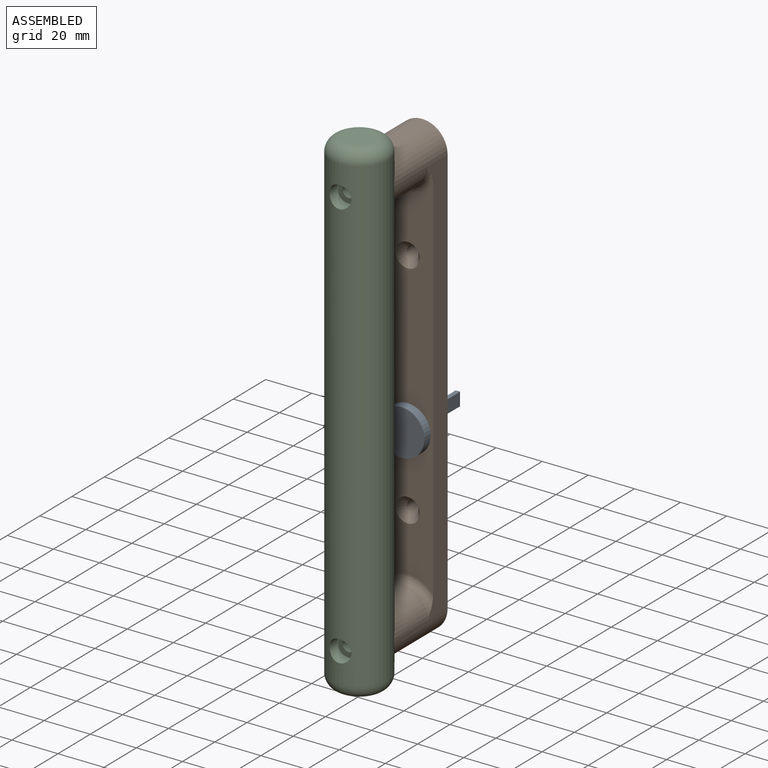
[diagram: assembled view]
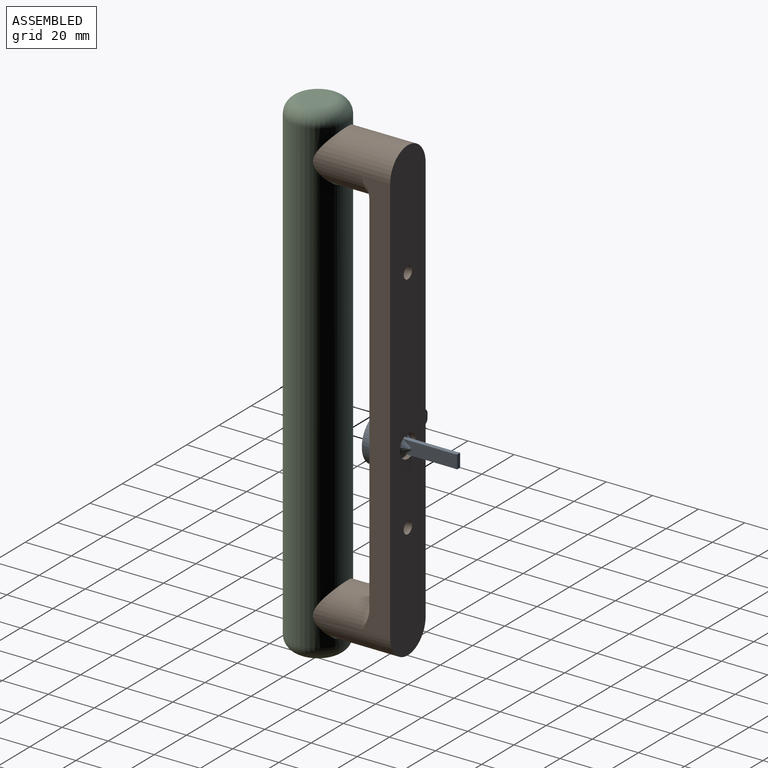
[diagram: assembled view, second angle]
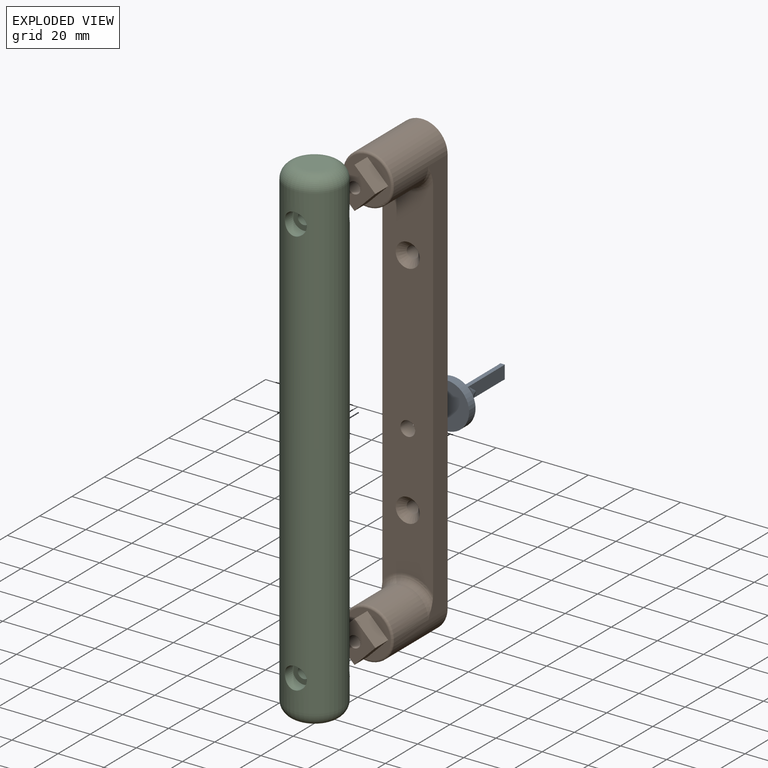
[diagram: exploded view]
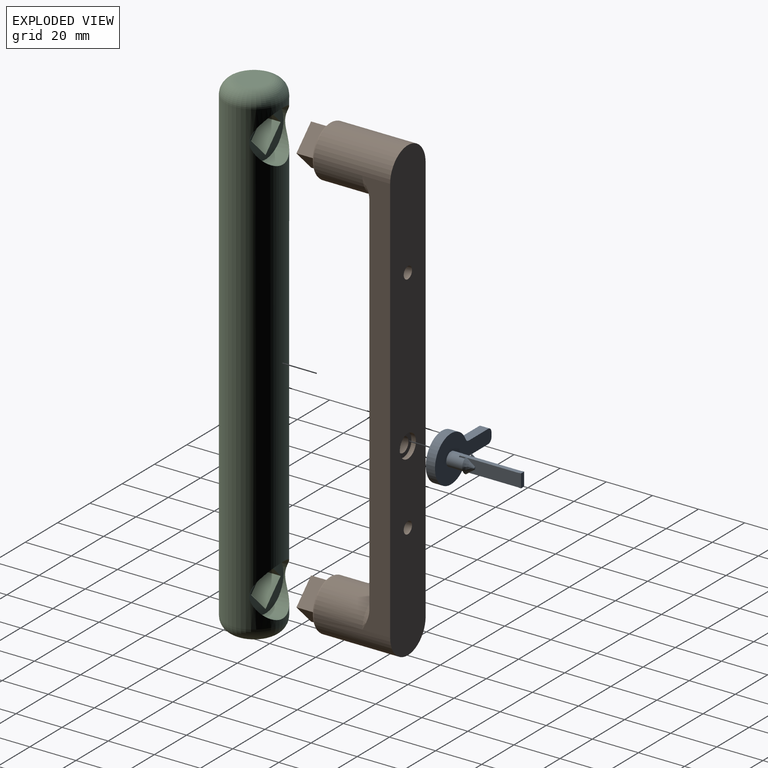
[diagram: exploded view, second angle]
ASSEMBLY  parts=3 mates=2
PART A: 31 faces, bbox 35x20x35 mm
  f0: cylinder r=10mm len=20mm, axis (0,0,-1), area 216.9mm2, adj f1,f3,f27,f28
  f1: plane 35x20mm, normal (0,0,1), area 375.9mm2, adj f0,f4,f5,f8,f11,f22,f23,f24
  f2: plane 26.5x5.85mm, normal (-1,0,0), area 151mm2, adj f4,f5,f7,f8,f12,f13,f25
  f3: plane 35x20mm, normal (0,0,-1), area 404mm2, adj f0,f22,f23,f24,f27,f28,f29,f30
  f4: plane 31x1.9mm, normal (0,1,0), area 41.9mm2, adj f1,f2,f6,f7,f8,f10,f11,f13
  f5: plane 31x1.9mm, normal (0,-1,0), area 41.9mm2, adj f1,f2,f6,f7,f8,f9,f11,f12
  f6: plane 26.5x5.85mm, normal (1,0,0), area 151mm2, adj f4,f5,f7,f9,f10,f11,f26
  f7: plane 5.85x1.9mm, normal (0,0,1), area 11.1mm2, adj f2,f4,f5,f6
  f8: cylinder r=3mm len=30mm, axis (0,0,-1), area 69.9mm2, adj f1,f2,f4,f5,f12,f13,f14,f16
  f9: plane 0.28x0.08mm, normal (0,0,-1), area 0mm2, adj f5,f6,f11
  f10: plane 0.28x0.08mm, normal (0,0,-1), area 0mm2, adj f4,f6,f11
  f11: cylinder r=3mm len=30mm, axis (0,0,-1), area 69.9mm2, adj f1,f4,f5,f6,f9,f10,f18,f20
  f12: plane 0.28x0.08mm, normal (0,0,-1), area 0mm2, adj f2,f5,f8
  f13: plane 0.28x0.08mm, normal (0,0,-1), area 0mm2, adj f2,f4,f8
  f14: plane 6.94x2.25mm, normal (0,0,-1), area 6mm2, adj f8,f16,f17
  f15: plane 1x0.5mm, normal (0,0,1), area 0.4mm2, adj f16,f17
  f16: plane 7x6.94mm, normal (1,0,0), area 31.3mm2, adj f8,f14,f15,f17,f25
  f17: bspline ~6.94x4mm, area 23.3mm2, adj f14,f15,f16
  f18: plane 6.94x2.25mm, normal (0,0,-1), area 6mm2, adj f11,f20,f21
  f19: plane 1x0.5mm, normal (0,0,1), area 0.4mm2, adj f20,f21
  f20: plane 7x6.94mm, normal (-1,0,0), area 31.3mm2, adj f11,f18,f19,f21,f26
  f21: bspline ~6.94x4mm, area 23.3mm2, adj f18,f19,f20
  f22: plane 12.09x4mm, normal (0,-1,0), area 48.4mm2, adj f1,f3,f27,f29
  f23: plane 12.09x4mm, normal (0,1,0), area 48.4mm2, adj f1,f3,f28,f30
  f24: plane 4x2mm, normal (-1,0,0), area 8mm2, adj f1,f3,f29,f30
  f25: plane 5.69x0.6mm, normal (0,0,1), area 3.3mm2, adj f2,f8,f16
  f26: plane 5.69x0.6mm, normal (0,0,1), area 3.3mm2, adj f6,f11,f20
  f27: cylinder r=2mm len=4mm, axis (0,0,-1), area 9.1mm2, adj f0,f1,f3,f22
  f28: cylinder r=2mm len=4mm, axis (0,0,-1), area 9.1mm2, adj f0,f1,f3,f23
  f29: cylinder r=2mm len=4mm, axis (0,0,1), area 12.6mm2, adj f1,f3,f22,f24
  f30: cylinder r=2mm len=4mm, axis (0,0,-1), area 12.6mm2, adj f1,f3,f23,f24
PART B: 51 faces, bbox 34.9x42x201.8 mm
  f0: plane 20x20mm, normal (0,-1,0), area 150.3mm2, adj f31,f32,f33,f34,f49
  f1: cylinder r=3.2mm len=7mm, axis (0,-1,0), area 140.7mm2, adj f4,f30
  f2: plane 178x12mm, normal (-1,0,0), area 1621.5mm2, adj f4,f5,f10,f11,f47,f48
  f3: plane 178x12mm, normal (1,0,0), area 1621.5mm2, adj f4,f5,f10,f11,f47,f48
  f4: plane 160.68x22mm, normal (0,-1,0), area 3167.8mm2, adj f1,f2,f3,f7,f9,f47,f48
  f5: plane 200x22mm, normal (0,1,0), area 4176.6mm2, adj f2,f3,f6,f8,f10,f11,f29
  f6: cylinder r=2.55mm len=5.93mm, axis (0,-1,0), area 95.1mm2, adj f5,f7
  f7: cone r=2.55mm half-angle=41deg, axis (0,-1,0), area 99.3mm2, adj f4,f6
  f8: cylinder r=2.55mm len=5.93mm, axis (0,-1,0), area 95.1mm2, adj f5,f9
  f9: cone r=2.55mm half-angle=41deg, axis (0,-1,0), area 99.3mm2, adj f4,f8
  f10: cylinder r=11mm len=33mm, axis (0,1,0), area 1866.1mm2, adj f2,f3,f5,f47,f49
  f11: cylinder r=11mm len=33mm, axis (0,-1,0), area 1866.1mm2, adj f2,f3,f5,f48,f50
  f12: plane 20x20mm, normal (0,-1,0), area 150.3mm2, adj f13,f14,f15,f16,f50
  f13: plane 9.05x9.05mm, normal (0.71,0,0.71), area 102.4mm2, adj f12,f14,f16,f17
  f14: plane 9.05x9.05mm, normal (-0.71,0,0.71), area 102.4mm2, adj f12,f13,f15,f17
  f15: plane 9.05x9.05mm, normal (-0.71,0,-0.71), area 102.4mm2, adj f12,f14,f16,f17
  f16: plane 9.05x9.05mm, normal (0.71,0,-0.71), area 102.4mm2, adj f12,f13,f15,f17
  f17: plane 18.1x18.1mm, normal (0,-1,0), area 143.4mm2, adj f13,f14,f15,f16,f18
  f18: cylinder r=2.55mm len=8mm, axis (0,-1,0), area 128.3mm2, adj f17,f26
  f19: plane 5.63x3.25mm, normal (0,0,-1), area 18.3mm2, adj f20,f24,f25,f26
  f20: plane 4.88x3.25mm, normal (0.87,0,-0.5), area 18.3mm2, adj f19,f21,f25,f26
  f21: plane 4.88x3.25mm, normal (0.87,0,0.5), area 18.3mm2, adj f20,f22,f25,f26
  f22: plane 5.63x3.25mm, normal (0,0,1), area 18.3mm2, adj f21,f23,f25,f26
  f23: plane 4.88x3.25mm, normal (-0.87,0,0.5), area 18.3mm2, adj f22,f24,f25,f26
  f24: plane 4.88x3.25mm, normal (-0.87,0,-0.5), area 18.3mm2, adj f19,f23,f25,f26
  f25: plane 11.26x9.75mm, normal (0,-1,0), area 61.9mm2, adj f19,f20,f21,f22,f23,f24,f28
  f26: plane 11.26x9.75mm, normal (0,1,0), area 61.9mm2, adj f18,f19,f20,f21,f22,f23,f24
  f27: cone r=0mm half-angle=59deg, axis (0,-1,0), area 23.9mm2, adj f28
  f28: cylinder r=2.55mm len=18.75mm, axis (0,-1,0), area 300.7mm2, adj f25,f27
  f29: cylinder r=5mm len=10mm, axis (0,1,0), area 62.8mm2, adj f5,f30
  f30: plane 10x10mm, normal (0,1,0), area 46.4mm2, adj f1,f29
  f31: plane 9.05x9.05mm, normal (0.71,0,-0.71), area 102.4mm2, adj f0,f32,f34,f35
  f32: plane 9.05x9.05mm, normal (0.71,0,0.71), area 102.4mm2, adj f0,f31,f33,f35
  f33: plane 9.05x9.05mm, normal (-0.71,0,0.71), area 102.4mm2, adj f0,f32,f34,f35
  f34: plane 9.05x9.05mm, normal (-0.71,0,-0.71), area 102.4mm2, adj f0,f31,f33,f35
  f35: plane 18.1x18.1mm, normal (0,-1,0), area 143.4mm2, adj f31,f32,f33,f34,f36
  f36: cylinder r=2.55mm len=8mm, axis (0,-1,0), area 128.3mm2, adj f35,f44
  f37: plane 5.63x3.25mm, normal (0,0,1), area 18.3mm2, adj f38,f42,f43,f44
  f38: plane 4.88x3.25mm, normal (-0.87,0,0.5), area 18.3mm2, adj f37,f39,f43,f44
  f39: plane 4.88x3.25mm, normal (-0.87,0,-0.5), area 18.3mm2, adj f38,f40,f43,f44
  f40: plane 5.63x3.25mm, normal (0,0,-1), area 18.3mm2, adj f39,f41,f43,f44
  f41: plane 4.88x3.25mm, normal (0.87,0,-0.5), area 18.3mm2, adj f40,f42,f43,f44
  f42: plane 4.88x3.25mm, normal (0.87,0,0.5), area 18.3mm2, adj f37,f41,f43,f44
  f43: plane 11.26x9.75mm, normal (0,-1,0), area 61.9mm2, adj f37,f38,f39,f40,f41,f42,f46
  f44: plane 11.26x9.75mm, normal (0,1,0), area 61.9mm2, adj f36,f37,f38,f39,f40,f41,f42
  f45: cone r=0mm half-angle=59deg, axis (0,-1,0), area 23.9mm2, adj f46
  f46: cylinder r=2.55mm len=18.75mm, axis (0,-1,0), area 300.7mm2, adj f43,f45
  f47: torus R=14mm, axis (0,-1,0), area 135.4mm2, adj f2,f3,f4,f10
  f48: torus R=14mm, axis (0,-1,0), area 135.4mm2, adj f2,f3,f4,f11
  f49: torus R=10mm, axis (0,-1,0), area 105mm2, adj f0,f10
  f50: torus R=10mm, axis (0,-1,0), area 105mm2, adj f11,f12
PART C: 25 faces, bbox 27.1x216x27.1 mm
  f0: cylinder r=12.5mm len=204mm, axis (0,1,0), area 14978.9mm2, adj f4,f6,f7,f8,f14,f22
  f1: plane 22.25x22.25mm, normal (0,0,-1), area 213.3mm2, adj f6,f9,f10,f11,f12
  f2: plane 13x13mm, normal (0,-1,0), area 132.7mm2, adj f8
  f3: plane 13x13mm, normal (0,1,0), area 132.7mm2, adj f7
  f4: cylinder r=11.12mm len=22.25mm, axis (0,0,-1), area 309mm2, adj f0,f5
  f5: plane 22.25x22.25mm, normal (0,0,-1), area 213.3mm2, adj f4,f17,f18,f19,f20
  f6: cylinder r=11.12mm len=22.25mm, axis (0,0,-1), area 309mm2, adj f0,f1
  f7: torus R=6.5mm, axis (0,-1,0), area 611.1mm2, adj f0,f3
  f8: torus R=6.5mm, axis (0,-1,0), area 611.1mm2, adj f0,f2
  f9: plane 9.37x9.37mm, normal (-0.71,-0.71,0), area 106mm2, adj f1,f10,f12,f13
  f10: plane 9.37x9.37mm, normal (-0.71,0.71,0), area 106mm2, adj f1,f9,f11,f13
  f11: plane 9.37x9.37mm, normal (0.71,0.71,0), area 106mm2, adj f1,f10,f12,f13
  f12: plane 9.37x9.37mm, normal (0.71,-0.71,0), area 106mm2, adj f1,f9,f11,f13
  f13: plane 18.74x18.74mm, normal (0,0,-1), area 155.1mm2, adj f9,f10,f11,f12,f15
  f14: cylinder r=4.76mm len=9.53mm, axis (0,0,1), area 158.7mm2, adj f0,f16
  f15: cylinder r=2.55mm len=5.11mm, axis (0,0,1), area 59.8mm2, adj f13,f16
  f16: plane 9.53x9.53mm, normal (0,0,1), area 50.8mm2, adj f14,f15
  f17: plane 9.37x9.37mm, normal (-0.71,0.71,0), area 106mm2, adj f5,f18,f20,f21
  f18: plane 9.37x9.37mm, normal (0.71,0.71,0), area 106mm2, adj f5,f17,f19,f21
  f19: plane 9.37x9.37mm, normal (0.71,-0.71,0), area 106mm2, adj f5,f18,f20,f21
  f20: plane 9.37x9.37mm, normal (-0.71,-0.71,0), area 106mm2, adj f5,f17,f19,f21
  f21: plane 18.74x18.74mm, normal (0,0,-1), area 155.1mm2, adj f17,f18,f19,f20,f23
  f22: cylinder r=4.76mm len=9.53mm, axis (0,0,1), area 158.7mm2, adj f0,f24
  f23: cylinder r=2.55mm len=5.11mm, axis (0,0,1), area 59.8mm2, adj f21,f24
  f24: plane 9.53x9.53mm, normal (0,0,1), area 50.8mm2, adj f22,f23
PLACE A rot(axis=(-1,0,0),90deg) t=(0,-13,-18)mm
PLACE B at identity fixed
PLACE C rot(axis=(0,-0.71,0.71),180deg) t=(0,-39,0)mm
MATE fastened C.f22 <-> B.f18  axis (0,1,0) through (0,-42,-89)mm
MATE revolute B.f1 <-> A.f0  axis (0,-1,0) through (0,-9,-18)mm
